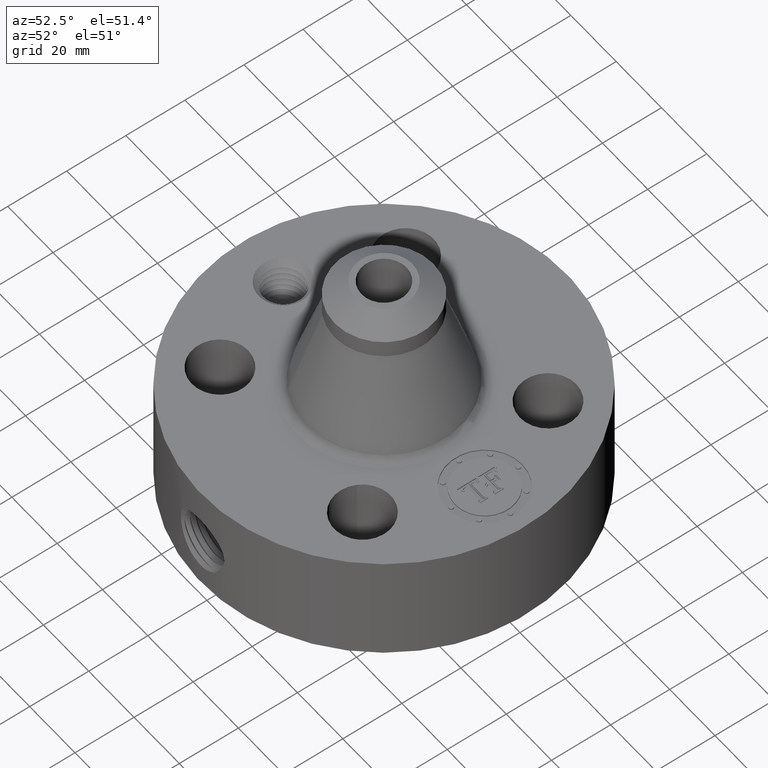
[diagram: clean part render]
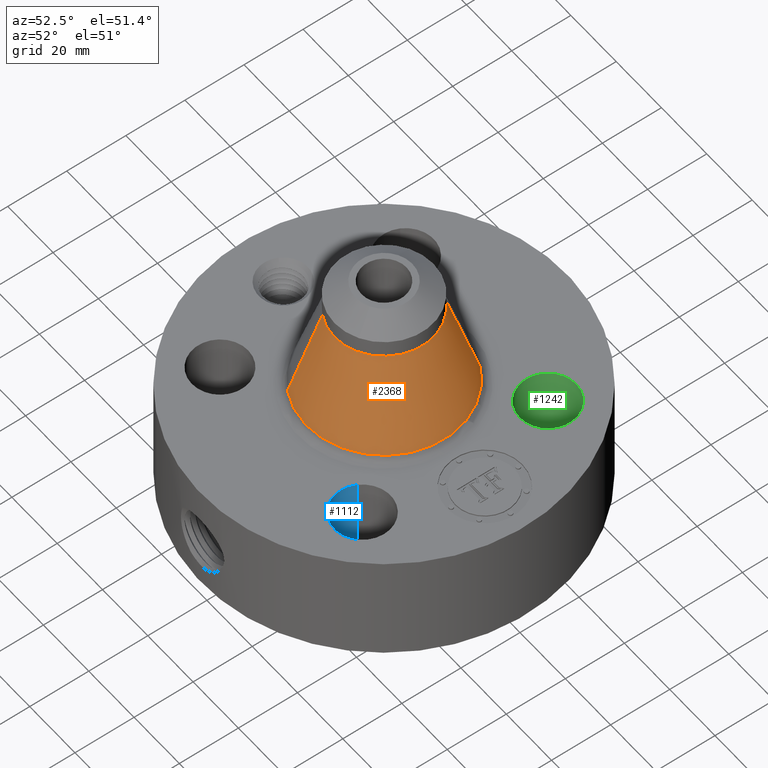
[diagram: same view with three faces highlighted in distinct colors, each labeled with its STEP entity id]
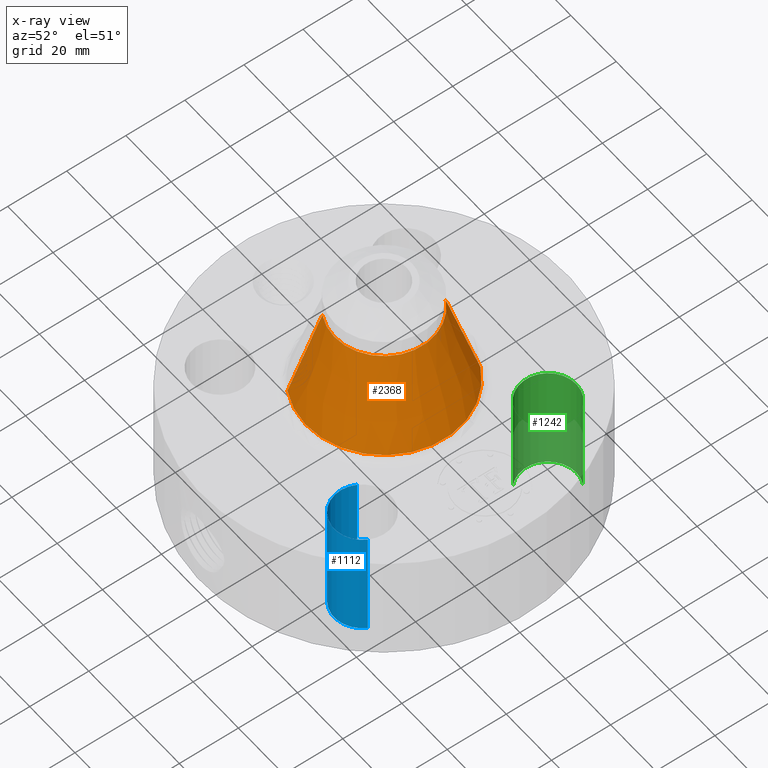
[diagram: x-ray of the same camera — body ghosted, the three highlighted faces saturated]
A machine part, auxiliary view with three faces highlighted in distinct colors.
The next image is the same camera in x-ray (body ghosted, the three faces saturated) — at least one of them is partly hidden behind the body in this view.
Their STEP definitions:

[orange] entity #2368 — the highlighted conical surface has half-angle 17.133 deg.
#1765=AXIS2_PLACEMENT_3D('Circle Axis2P3D',#1763,#1764,$) ;
#2341=AXIS2_PLACEMENT_3D('Cone Axis2P3D',#2338,#2339,#2340) ;
#2352=AXIS2_PLACEMENT_3D('Circle Axis2P3D',#2350,#2351,$) ;
#1760=CARTESIAN_POINT('Vertex',(0.495680637373,0.907337320601,1.83464952838)) ;
#1763=CARTESIAN_POINT('Axis2P3D Location',(0.,0.,1.83464952838)) ;
#1767=CARTESIAN_POINT('Vertex',(-0.495680637373,-0.907337320601,1.83464952838)) ;
#2338=CARTESIAN_POINT('Axis2P3D Location',(0.,0.,3.04757759628)) ;
#2343=CARTESIAN_POINT('Line Origine',(0.406050746426,0.743270905726,2.44111356233)) ;
#2347=CARTESIAN_POINT('Vertex',(0.31642085548,0.57920449085,3.04757759628)) ;
#2350=CARTESIAN_POINT('Axis2P3D Location',(0.,0.,3.04757759628)) ;
#2354=CARTESIAN_POINT('Vertex',(-0.31642085548,-0.57920449085,3.04757759628)) ;
#2357=CARTESIAN_POINT('Line Origine',(-0.406050746426,-0.743270905726,2.44111356233)) ;
#1764=DIRECTION('Axis2P3D Direction',(0.,0.,-0.0393700787402)) ;
#2339=DIRECTION('Axis2P3D Direction',(0.,0.,-0.0393700787402)) ;
#2340=DIRECTION('Axis2P3D XDirection',(-0.0188750212049,-0.0345504945626,0.)) ;
#2344=DIRECTION('Vector Direction',(0.00556034084595,0.010178135647,-0.0376230150896)) ;
#2351=DIRECTION('Axis2P3D Direction',(0.,0.,-0.0393700787402)) ;
#2358=DIRECTION('Vector Direction',(-0.00556034084595,-0.010178135647,-0.0376230150896)) ;
#2345=VECTOR('Line Direction',#2344,0.0393700787402) ;
#2359=VECTOR('Line Direction',#2358,0.0393700787402) ;
#2363=ORIENTED_EDGE('',*,*,#1769,.F.) ;
#2364=ORIENTED_EDGE('',*,*,#2349,.T.) ;
#2365=ORIENTED_EDGE('',*,*,#2356,.T.) ;
#2366=ORIENTED_EDGE('',*,*,#2361,.F.) ;
#2368=ADVANCED_FACE('PartBody',(#2367),#2342,.T.) ;
#1766=CIRCLE('generated circle',#1765,1.03390536686) ;
#2353=CIRCLE('generated circle',#2352,0.660000000003) ;
#2342=CONICAL_SURFACE('Cone',#2341,0.660000000003,0.299023587593) ;
#1769=EDGE_CURVE('',#1761,#1768,#1766,.T.) ;
#2349=EDGE_CURVE('',#1761,#2348,#2346,.F.) ;
#2356=EDGE_CURVE('',#2348,#2355,#2353,.T.) ;
#2361=EDGE_CURVE('',#1768,#2355,#2360,.F.) ;
#2362=EDGE_LOOP('',(#2363,#2364,#2365,#2366)) ;
#2367=FACE_OUTER_BOUND('',#2362,.T.) ;
#2346=LINE('Line',#2343,#2345) ;
#2360=LINE('Line',#2357,#2359) ;
#1761=VERTEX_POINT('',#1760) ;
#1768=VERTEX_POINT('',#1767) ;
#2348=VERTEX_POINT('',#2347) ;
#2355=VERTEX_POINT('',#2354) ;

[blue] entity #1112 — the highlighted cylindrical surface (edge-blend (fillet) strip) has radius 9.525 mm, axis along (0, -0, -1).
#227=AXIS2_PLACEMENT_3D('Circle Axis2P3D',#225,#226,$) ;
#484=AXIS2_PLACEMENT_3D('Circle Axis2P3D',#482,#483,$) ;
#1094=AXIS2_PLACEMENT_3D('Cylinder Axis2P3D',#1091,#1092,#1093) ;
#225=CARTESIAN_POINT('Axis2P3D Location',(1.23743686708,-1.23743686708,0.250000000001)) ;
#229=CARTESIAN_POINT('Vertex',(1.56653032779,-1.41722144406,0.250000000001)) ;
#231=CARTESIAN_POINT('Vertex',(0.908343406371,-1.0576522901,0.250000000001)) ;
#477=CARTESIAN_POINT('Vertex',(0.908343406371,-1.0576522901,1.75000000001)) ;
#479=CARTESIAN_POINT('Vertex',(1.56653032779,-1.41722144406,1.75000000001)) ;
#482=CARTESIAN_POINT('Axis2P3D Location',(1.23743686708,-1.23743686708,1.75000000001)) ;
#1091=CARTESIAN_POINT('Axis2P3D Location',(1.23743686708,-1.23743686708,1.74606299213)) ;
#1096=CARTESIAN_POINT('Line Origine',(1.56653032779,-1.41722144406,1.)) ;
#1101=CARTESIAN_POINT('Line Origine',(0.908343406371,-1.0576522901,1.)) ;
#226=DIRECTION('Axis2P3D Direction',(0.,0.,-0.0393700787402)) ;
#483=DIRECTION('Axis2P3D Direction',(0.,0.,-0.0393700787402)) ;
#1092=DIRECTION('Axis2P3D Direction',(0.,-0.,-0.0393700787402)) ;
#1093=DIRECTION('Axis2P3D XDirection',(-0.0345504945626,0.0188750212049,0.)) ;
#1097=DIRECTION('Vector Direction',(0.,0.,-0.0393700787402)) ;
#1102=DIRECTION('Vector Direction',(0.,0.,-0.0393700787402)) ;
#1098=VECTOR('Line Direction',#1097,0.0393700787402) ;
#1103=VECTOR('Line Direction',#1102,0.0393700787402) ;
#1107=ORIENTED_EDGE('',*,*,#1100,.F.) ;
#1108=ORIENTED_EDGE('',*,*,#233,.T.) ;
#1109=ORIENTED_EDGE('',*,*,#1105,.T.) ;
#1110=ORIENTED_EDGE('',*,*,#486,.F.) ;
#1112=ADVANCED_FACE('PartBody',(#1111),#1095,.F.) ;
#228=CIRCLE('generated circle',#227,0.375000000001) ;
#485=CIRCLE('generated circle',#484,0.375000000001) ;
#1095=CYLINDRICAL_SURFACE('generated cylinder',#1094,0.375000000001) ;
#233=EDGE_CURVE('',#230,#232,#228,.T.) ;
#486=EDGE_CURVE('',#480,#478,#485,.T.) ;
#1100=EDGE_CURVE('',#230,#480,#1099,.F.) ;
#1105=EDGE_CURVE('',#232,#478,#1104,.F.) ;
#1106=EDGE_LOOP('',(#1107,#1108,#1109,#1110)) ;
#1111=FACE_OUTER_BOUND('',#1106,.T.) ;
#1099=LINE('Line',#1096,#1098) ;
#1104=LINE('Line',#1101,#1103) ;
#230=VERTEX_POINT('',#229) ;
#232=VERTEX_POINT('',#231) ;
#478=VERTEX_POINT('',#477) ;
#480=VERTEX_POINT('',#479) ;

[green] entity #1242 — the highlighted cylindrical surface (edge-blend (fillet) strip) has radius 9.525 mm, axis along (0, 0, -1).
#299=AXIS2_PLACEMENT_3D('Circle Axis2P3D',#297,#298,$) ;
#556=AXIS2_PLACEMENT_3D('Circle Axis2P3D',#554,#555,$) ;
#1224=AXIS2_PLACEMENT_3D('Cylinder Axis2P3D',#1221,#1222,#1223) ;
#297=CARTESIAN_POINT('Axis2P3D Location',(1.23743686708,1.23743686708,0.250000000001)) ;
#301=CARTESIAN_POINT('Vertex',(1.0576522901,0.908343406371,0.250000000001)) ;
#303=CARTESIAN_POINT('Vertex',(1.41722144406,1.56653032779,0.250000000001)) ;
#549=CARTESIAN_POINT('Vertex',(1.41722144406,1.56653032779,1.75000000001)) ;
#551=CARTESIAN_POINT('Vertex',(1.0576522901,0.908343406371,1.75000000001)) ;
#554=CARTESIAN_POINT('Axis2P3D Location',(1.23743686708,1.23743686708,1.75000000001)) ;
#1221=CARTESIAN_POINT('Axis2P3D Location',(1.23743686708,1.23743686708,1.74606299213)) ;
#1226=CARTESIAN_POINT('Line Origine',(1.0576522901,0.908343406371,1.)) ;
#1231=CARTESIAN_POINT('Line Origine',(1.41722144406,1.56653032779,1.)) ;
#298=DIRECTION('Axis2P3D Direction',(0.,0.,-0.0393700787402)) ;
#555=DIRECTION('Axis2P3D Direction',(0.,0.,-0.0393700787402)) ;
#1222=DIRECTION('Axis2P3D Direction',(0.,0.,-0.0393700787402)) ;
#1223=DIRECTION('Axis2P3D XDirection',(0.0188750212049,0.0345504945626,0.)) ;
#1227=DIRECTION('Vector Direction',(0.,0.,-0.0393700787402)) ;
#1232=DIRECTION('Vector Direction',(0.,0.,-0.0393700787402)) ;
#1228=VECTOR('Line Direction',#1227,0.0393700787402) ;
#1233=VECTOR('Line Direction',#1232,0.0393700787402) ;
#1237=ORIENTED_EDGE('',*,*,#1230,.F.) ;
#1238=ORIENTED_EDGE('',*,*,#305,.T.) ;
#1239=ORIENTED_EDGE('',*,*,#1235,.T.) ;
#1240=ORIENTED_EDGE('',*,*,#558,.F.) ;
#1242=ADVANCED_FACE('PartBody',(#1241),#1225,.F.) ;
#300=CIRCLE('generated circle',#299,0.375000000001) ;
#557=CIRCLE('generated circle',#556,0.375000000001) ;
#1225=CYLINDRICAL_SURFACE('generated cylinder',#1224,0.375000000001) ;
#305=EDGE_CURVE('',#302,#304,#300,.T.) ;
#558=EDGE_CURVE('',#552,#550,#557,.T.) ;
#1230=EDGE_CURVE('',#302,#552,#1229,.F.) ;
#1235=EDGE_CURVE('',#304,#550,#1234,.F.) ;
#1236=EDGE_LOOP('',(#1237,#1238,#1239,#1240)) ;
#1241=FACE_OUTER_BOUND('',#1236,.T.) ;
#1229=LINE('Line',#1226,#1228) ;
#1234=LINE('Line',#1231,#1233) ;
#302=VERTEX_POINT('',#301) ;
#304=VERTEX_POINT('',#303) ;
#550=VERTEX_POINT('',#549) ;
#552=VERTEX_POINT('',#551) ;